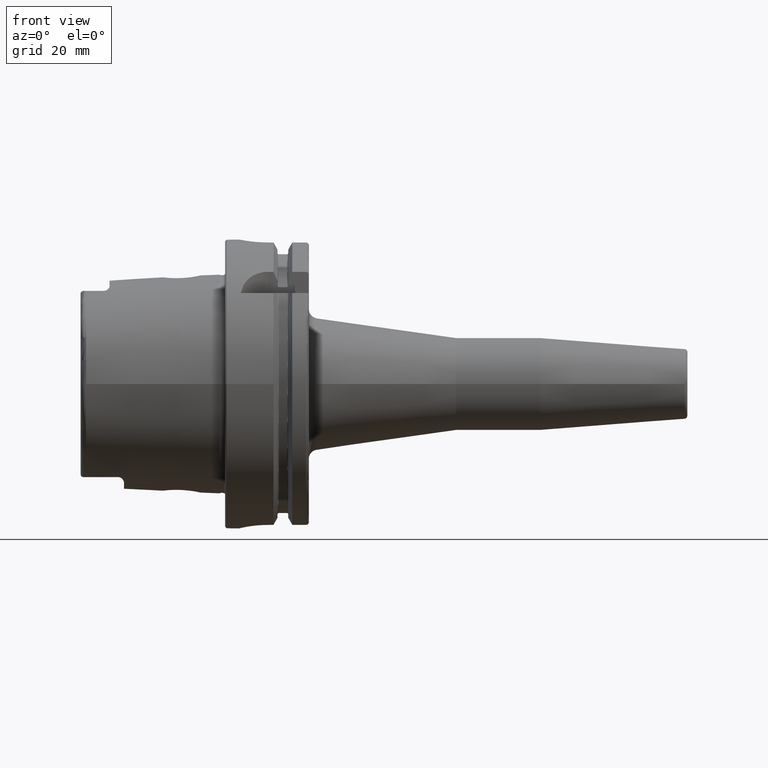
[diagram: clean part render]
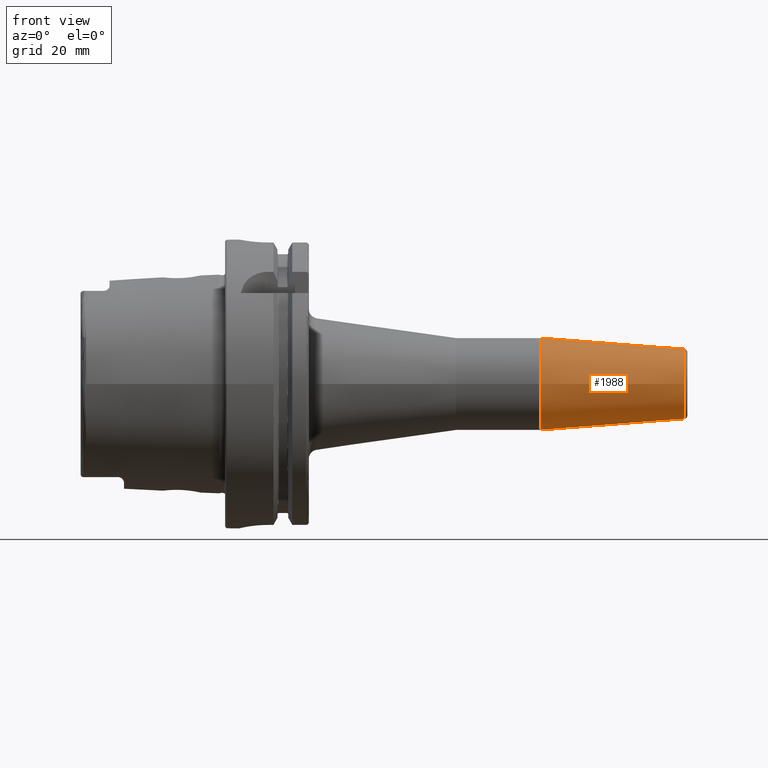
[diagram: same view with one face highlighted and labeled with its STEP entity id]
A machine part, front view. The second image highlights one B-rep face of the part: STEP entity #1988.
In plain terms, the highlighted conical surface has half-angle 4.5 deg.
Its self-contained STEP definition (entity closure, byte-faithful):
#213=FACE_OUTER_BOUND('',#333,.T.);
#333=EDGE_LOOP('',(#1350,#1351,#1352,#1353,#1354));
#465=LINE('',#3042,#573);
#573=VECTOR('',#2419,14.);
#681=CIRCLE('',#2137,12.0725268420749);
#682=CIRCLE('',#2138,12.0725268420749);
#683=CIRCLE('',#2140,16.);
#815=VERTEX_POINT('',#3035);
#816=VERTEX_POINT('',#3037);
#817=VERTEX_POINT('',#3041);
#1024=EDGE_CURVE('',#815,#816,#681,.T.);
#1025=EDGE_CURVE('',#816,#815,#682,.T.);
#1026=EDGE_CURVE('',#816,#817,#465,.T.);
#1027=EDGE_CURVE('',#817,#817,#683,.T.);
#1350=ORIENTED_EDGE('',*,*,#1025,.F.);
#1351=ORIENTED_EDGE('',*,*,#1026,.T.);
#1352=ORIENTED_EDGE('',*,*,#1027,.T.);
#1353=ORIENTED_EDGE('',*,*,#1026,.F.);
#1354=ORIENTED_EDGE('',*,*,#1024,.F.);
#1967=CONICAL_SURFACE('',#2139,14.,0.0785398163397449);
#1988=ADVANCED_FACE('',(#213),#1967,.T.);
#2137=AXIS2_PLACEMENT_3D('',#3038,#2413,#2414);
#2138=AXIS2_PLACEMENT_3D('',#3039,#2415,#2416);
#2139=AXIS2_PLACEMENT_3D('',#3040,#2417,#2418);
#2140=AXIS2_PLACEMENT_3D('',#3043,#2420,#2421);
#2413=DIRECTION('center_axis',(1.,0.,0.));
#2414=DIRECTION('ref_axis',(0.,-1.,3.06161699786838E-17));
#2415=DIRECTION('center_axis',(1.,0.,0.));
#2416=DIRECTION('ref_axis',(0.,-1.,3.06161699786838E-17));
#2417=DIRECTION('center_axis',(-1.,0.,0.));
#2418=DIRECTION('ref_axis',(0.,1.,0.));
#2419=DIRECTION('',(-0.996917333733128,-0.078459095727845,-9.60846804471011E-18));
#2420=DIRECTION('center_axis',(1.,0.,0.));
#2421=DIRECTION('ref_axis',(0.,0.,-1.));
#3035=CARTESIAN_POINT('',(159.078459095728,-1.47845813547676E-15,12.0725268420749));
#3037=CARTESIAN_POINT('',(159.078459095728,-12.0725268420749,-1.47845813547676E-15));
#3038=CARTESIAN_POINT('Origin',(159.078459095728,0.,-1.84807266934594E-15));
#3039=CARTESIAN_POINT('Origin',(159.078459095728,0.,-1.84807266934594E-15));
#3040=CARTESIAN_POINT('Origin',(134.587590527651,0.,0.));
#3041=CARTESIAN_POINT('',(109.175181055301,-16.,-1.95943487863577E-15));
#3042=CARTESIAN_POINT('',(134.587590527651,-14.,-1.71450551880629E-15));
#3043=CARTESIAN_POINT('Origin',(109.175181055301,0.,0.));